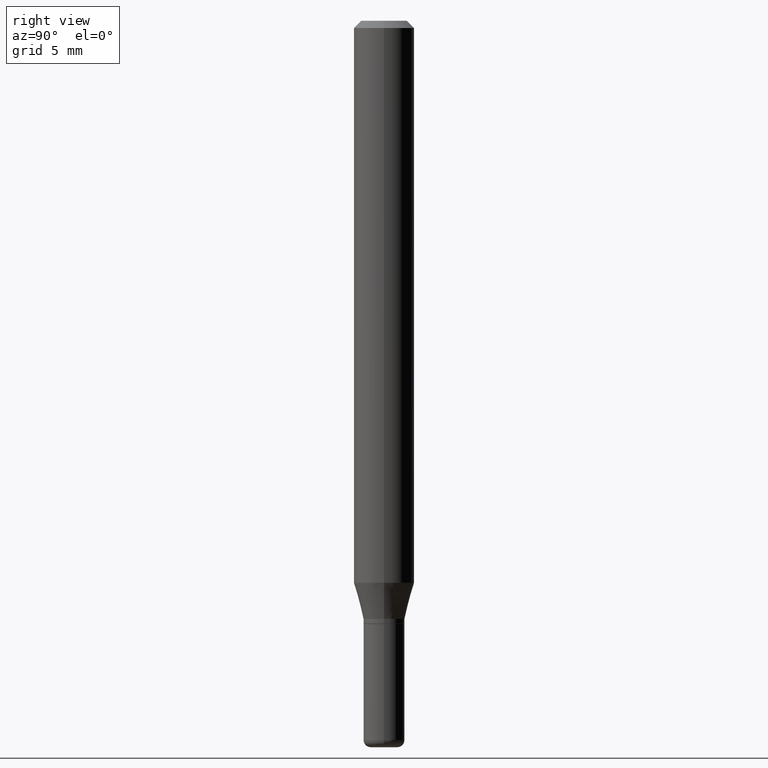
[diagram: clean part render]
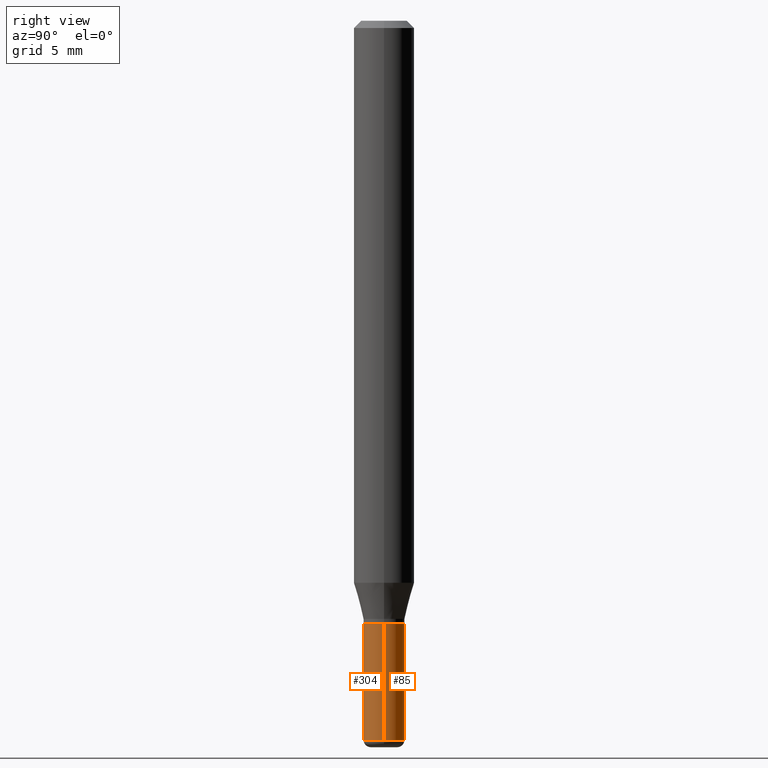
[diagram: same view with one multi-face feature highlighted, each face labeled with its STEP entity id]
A machine part, right view. The highlighted faces form ONE feature: a constant-radius fillet chain: 2 tangent blend faces with common blend radius 1.0795 mm. The faces share edges in the B-rep.
Their STEP definitions:
[1] entity #85 (Cylinder):
#25 = CARTESIAN_POINT ( 'NONE',  ( -0.04249999999999998918, -4.463891364822850828E-15, -1.485000000000000098 ) ) ;
#30 = CARTESIAN_POINT ( 'NONE',  ( 0.000000000000000000, 0.000000000000000000, 0.000000000000000000 ) ) ;
#33 = DIRECTION ( 'NONE',  ( 1.000000000000000000, -6.982962677686265133E-15, 0.000000000000000000 ) ) ;
#35 = DIRECTION ( 'NONE',  ( -2.445468806185136877E-29, 3.491481338843145188E-15, 1.000000000000000000 ) ) ;
#41 = EDGE_CURVE ( 'NONE', #175, #155, #45, .T. ) ;
#43 = ORIENTED_EDGE ( 'NONE', *, *, #57, .F. ) ;
#44 = CARTESIAN_POINT ( 'NONE',  ( -0.04249999999999999611, -4.463891364822850828E-15, -1.244999999999999885 ) ) ;
#45 = CIRCLE ( 'NONE', #200, 0.04249999999999998918 ) ;
#57 = EDGE_CURVE ( 'NONE', #121, #383, #319, .T. ) ;
#61 = ORIENTED_EDGE ( 'NONE', *, *, #441, .T. ) ;
#63 = DIRECTION ( 'NONE',  ( -2.445468806185136597E-29, 3.491481338843145583E-15, 1.000000000000000000 ) ) ;
#85 = ADVANCED_FACE ( 'NONE', ( #115 ), #436, .T. ) ;
#115 = FACE_OUTER_BOUND ( 'NONE', #363, .T. ) ;
#121 = VERTEX_POINT ( 'NONE', #357 ) ;
#151 = AXIS2_PLACEMENT_3D ( 'NONE', #389, #309, #33 ) ;
#155 = VERTEX_POINT ( 'NONE', #25 ) ;
#175 = VERTEX_POINT ( 'NONE', #190 ) ;
#189 = DIRECTION ( 'NONE',  ( -2.445468806185136877E-29, 3.491481338843145188E-15, 1.000000000000000000 ) ) ;
#190 = CARTESIAN_POINT ( 'NONE',  ( 0.04249999999999998918, -5.481625701983738143E-15, -1.485000000000000098 ) ) ;
#200 = AXIS2_PLACEMENT_3D ( 'NONE', #352, #63, #274 ) ;
#221 = ORIENTED_EDGE ( 'NONE', *, *, #41, .T. ) ;
#240 = EDGE_CURVE ( 'NONE', #175, #121, #516, .T. ) ;
#271 = LINE ( 'NONE', #430, #286 ) ;
#274 = DIRECTION ( 'NONE',  ( 1.000000000000000000, -6.982962677686276966E-15, 0.000000000000000000 ) ) ;
#286 = VECTOR ( 'NONE', #189, 39.37007874015748143 ) ;
#306 = VECTOR ( 'NONE', #35, 39.37007874015748143 ) ;
#309 = DIRECTION ( 'NONE',  ( -2.445468806185136597E-29, 3.491481338843145583E-15, 1.000000000000000000 ) ) ;
#319 = CIRCLE ( 'NONE', #151, 0.04249999999999999611 ) ;
#322 = ORIENTED_EDGE ( 'NONE', *, *, #240, .F. ) ;
#351 = DIRECTION ( 'NONE',  ( 1.000000000000000000, -6.982962677686267499E-15, 4.876176775795935793E-29 ) ) ;
#352 = CARTESIAN_POINT ( 'NONE',  ( 3.631521177184928138E-29, -5.184849788182071492E-15, -1.485000000000000098 ) ) ;
#357 = CARTESIAN_POINT ( 'NONE',  ( 0.04249999999999999611, -4.643670180661382509E-15, -1.244999999999999885 ) ) ;
#363 = EDGE_LOOP ( 'NONE', ( #221, #61, #43, #322 ) ) ;
#383 = VERTEX_POINT ( 'NONE', #44 ) ;
#389 = CARTESIAN_POINT ( 'NONE',  ( 3.044608663700494973E-29, -4.346894266859715858E-15, -1.244999999999999885 ) ) ;
#430 = CARTESIAN_POINT ( 'NONE',  ( -0.04249999999999998918, 3.019806626980425021E-16, -2.090547413358334509E-30 ) ) ;
#436 = CYLINDRICAL_SURFACE ( 'NONE', #488, 0.04249999999999998918 ) ;
#441 = EDGE_CURVE ( 'NONE', #155, #383, #271, .T. ) ;
#477 = CARTESIAN_POINT ( 'NONE',  ( 0.04249999999999998918, -2.967759138016663056E-16, 2.072375129713272151E-30 ) ) ;
#488 = AXIS2_PLACEMENT_3D ( 'NONE', #30, #507, #351 ) ;
#507 = DIRECTION ( 'NONE',  ( -2.445468806185136597E-29, 3.491481338843145583E-15, 1.000000000000000000 ) ) ;
#516 = LINE ( 'NONE', #477, #306 ) ;
[2] entity #304 (Cylinder):
#24 = AXIS2_PLACEMENT_3D ( 'NONE', #448, #86, #211 ) ;
#25 = CARTESIAN_POINT ( 'NONE',  ( -0.04249999999999998918, -4.463891364822850828E-15, -1.485000000000000098 ) ) ;
#35 = DIRECTION ( 'NONE',  ( -2.445468806185136877E-29, 3.491481338843145188E-15, 1.000000000000000000 ) ) ;
#44 = CARTESIAN_POINT ( 'NONE',  ( -0.04249999999999999611, -4.463891364822850828E-15, -1.244999999999999885 ) ) ;
#51 = CYLINDRICAL_SURFACE ( 'NONE', #192, 0.04249999999999998918 ) ;
#86 = DIRECTION ( 'NONE',  ( -2.445468806185136597E-29, 3.491481338843145583E-15, 1.000000000000000000 ) ) ;
#96 = FACE_OUTER_BOUND ( 'NONE', #303, .T. ) ;
#112 = AXIS2_PLACEMENT_3D ( 'NONE', #491, #142, #258 ) ;
#121 = VERTEX_POINT ( 'NONE', #357 ) ;
#138 = DIRECTION ( 'NONE',  ( 1.000000000000000000, -6.982962677686267499E-15, 4.876176775795935793E-29 ) ) ;
#142 = DIRECTION ( 'NONE',  ( -2.445468806185136597E-29, 3.491481338843145583E-15, 1.000000000000000000 ) ) ;
#148 = ORIENTED_EDGE ( 'NONE', *, *, #470, .F. ) ;
#155 = VERTEX_POINT ( 'NONE', #25 ) ;
#175 = VERTEX_POINT ( 'NONE', #190 ) ;
#189 = DIRECTION ( 'NONE',  ( -2.445468806185136877E-29, 3.491481338843145188E-15, 1.000000000000000000 ) ) ;
#190 = CARTESIAN_POINT ( 'NONE',  ( 0.04249999999999998918, -5.481625701983738143E-15, -1.485000000000000098 ) ) ;
#192 = AXIS2_PLACEMENT_3D ( 'NONE', #496, #255, #138 ) ;
#211 = DIRECTION ( 'NONE',  ( 1.000000000000000000, -6.982962677686265133E-15, 0.000000000000000000 ) ) ;
#240 = EDGE_CURVE ( 'NONE', #175, #121, #516, .T. ) ;
#255 = DIRECTION ( 'NONE',  ( -2.445468806185136597E-29, 3.491481338843145583E-15, 1.000000000000000000 ) ) ;
#258 = DIRECTION ( 'NONE',  ( 1.000000000000000000, -6.982962677686276966E-15, 0.000000000000000000 ) ) ;
#271 = LINE ( 'NONE', #430, #286 ) ;
#285 = ORIENTED_EDGE ( 'NONE', *, *, #441, .F. ) ;
#286 = VECTOR ( 'NONE', #189, 39.37007874015748143 ) ;
#303 = EDGE_LOOP ( 'NONE', ( #285, #382, #494, #148 ) ) ;
#304 = ADVANCED_FACE ( 'NONE', ( #96 ), #51, .T. ) ;
#306 = VECTOR ( 'NONE', #35, 39.37007874015748143 ) ;
#330 = EDGE_CURVE ( 'NONE', #155, #175, #386, .T. ) ;
#357 = CARTESIAN_POINT ( 'NONE',  ( 0.04249999999999999611, -4.643670180661382509E-15, -1.244999999999999885 ) ) ;
#382 = ORIENTED_EDGE ( 'NONE', *, *, #330, .T. ) ;
#383 = VERTEX_POINT ( 'NONE', #44 ) ;
#386 = CIRCLE ( 'NONE', #112, 0.04249999999999998918 ) ;
#399 = CIRCLE ( 'NONE', #24, 0.04249999999999999611 ) ;
#430 = CARTESIAN_POINT ( 'NONE',  ( -0.04249999999999998918, 3.019806626980425021E-16, -2.090547413358334509E-30 ) ) ;
#441 = EDGE_CURVE ( 'NONE', #155, #383, #271, .T. ) ;
#448 = CARTESIAN_POINT ( 'NONE',  ( 3.044608663700494973E-29, -4.346894266859715858E-15, -1.244999999999999885 ) ) ;
#470 = EDGE_CURVE ( 'NONE', #383, #121, #399, .T. ) ;
#477 = CARTESIAN_POINT ( 'NONE',  ( 0.04249999999999998918, -2.967759138016663056E-16, 2.072375129713272151E-30 ) ) ;
#491 = CARTESIAN_POINT ( 'NONE',  ( 3.631521177184928138E-29, -5.184849788182071492E-15, -1.485000000000000098 ) ) ;
#494 = ORIENTED_EDGE ( 'NONE', *, *, #240, .T. ) ;
#496 = CARTESIAN_POINT ( 'NONE',  ( 0.000000000000000000, 0.000000000000000000, 0.000000000000000000 ) ) ;
#516 = LINE ( 'NONE', #477, #306 ) ;